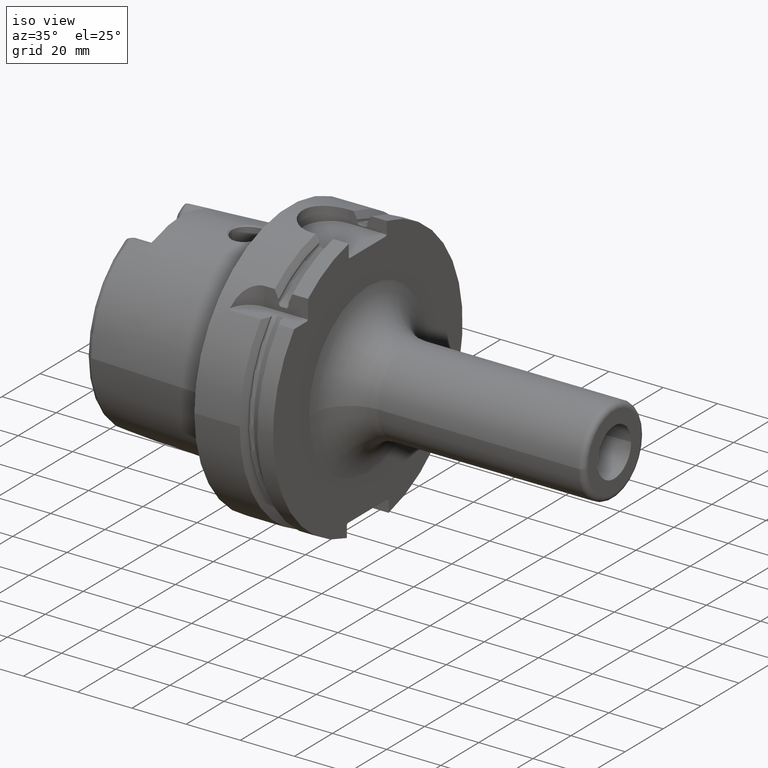
[diagram: clean part render]
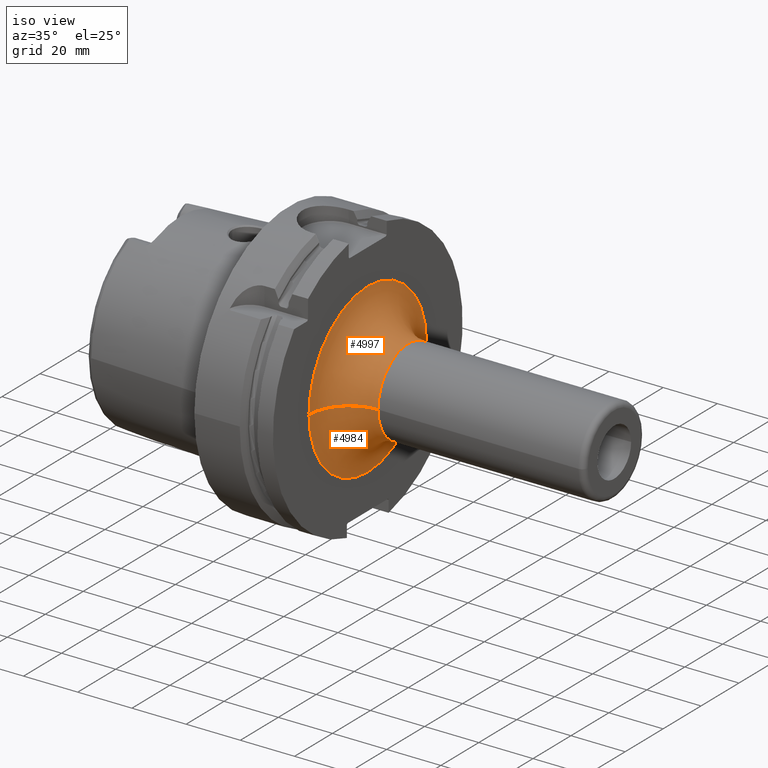
[diagram: same view with one multi-face feature highlighted, each face labeled with its STEP entity id]
A machine part, iso view. The highlighted faces form ONE feature: a constant-radius fillet chain: 2 tangent blend faces with common blend radius 15 mm. The faces share edges in the B-rep.
Their STEP definitions:
[1] entity #4984 (Torus):
#1091=CARTESIAN_POINT('',(2.9E1,0.E0,0.E0));
#1092=DIRECTION('',(1.E0,0.E0,0.E0));
#1093=DIRECTION('',(0.E0,-1.E0,0.E0));
#1094=AXIS2_PLACEMENT_3D('',#1091,#1092,#1093);
#1810=CARTESIAN_POINT('',(4.4E1,-3.1E1,1.844940866746E-12));
#1811=DIRECTION('',(0.E0,-5.951489301381E-14,-1.E0));
#1812=DIRECTION('',(-1.E0,0.E0,0.E0));
#1813=AXIS2_PLACEMENT_3D('',#1810,#1811,#1812);
#1815=CARTESIAN_POINT('',(4.4E1,3.1E1,-1.849187469816E-12));
#1816=DIRECTION('',(0.E0,5.965193616841E-14,1.E0));
#1817=DIRECTION('',(-1.E0,0.E0,0.E0));
#1818=AXIS2_PLACEMENT_3D('',#1815,#1816,#1817);
#1849=CARTESIAN_POINT('',(4.4E1,0.E0,0.E0));
#1850=DIRECTION('',(1.E0,0.E0,0.E0));
#1851=DIRECTION('',(0.E0,-1.E0,0.E0));
#1852=AXIS2_PLACEMENT_3D('',#1849,#1850,#1851);
#3125=CARTESIAN_POINT('',(2.9E1,-3.1E1,0.E0));
#3126=CARTESIAN_POINT('',(2.9E1,3.1E1,0.E0));
#3127=VERTEX_POINT('',#3125);
#3128=VERTEX_POINT('',#3126);
#3129=CARTESIAN_POINT('',(4.4E1,-1.6E1,0.E0));
#3130=CARTESIAN_POINT('',(4.4E1,1.6E1,0.E0));
#3131=VERTEX_POINT('',#3129);
#3132=VERTEX_POINT('',#3130);
#4970=CARTESIAN_POINT('',(4.4E1,0.E0,0.E0));
#4971=DIRECTION('',(1.E0,0.E0,0.E0));
#4972=DIRECTION('',(0.E0,-9.999884548084E-1,4.805231507475E-3));
#4973=AXIS2_PLACEMENT_3D('',#4970,#4971,#4972);
#4974=TOROIDAL_SURFACE('',#4973,3.1E1,1.5E1);
#4975=ORIENTED_EDGE('',*,*,#4250,.F.);
#4977=ORIENTED_EDGE('',*,*,#4976,.T.);
#4979=ORIENTED_EDGE('',*,*,#4978,.T.);
#4981=ORIENTED_EDGE('',*,*,#4980,.F.);
#4982=EDGE_LOOP('',(#4975,#4977,#4979,#4981));
#4983=FACE_OUTER_BOUND('',#4982,.F.);
#4984=ADVANCED_FACE('',(#4983),#4974,.F.);
#1095=CIRCLE('',#1094,3.1E1);
#1814=CIRCLE('',#1813,1.5E1);
#1819=CIRCLE('',#1818,1.5E1);
#1853=CIRCLE('',#1852,1.6E1);
#4250=EDGE_CURVE('',#3127,#3128,#1095,.T.);
#4976=EDGE_CURVE('',#3127,#3131,#1814,.T.);
#4978=EDGE_CURVE('',#3131,#3132,#1853,.T.);
#4980=EDGE_CURVE('',#3128,#3132,#1819,.T.);
[2] entity #4997 (Torus):
#1096=CARTESIAN_POINT('',(2.9E1,0.E0,0.E0));
#1097=DIRECTION('',(1.E0,0.E0,0.E0));
#1098=DIRECTION('',(0.E0,1.E0,0.E0));
#1099=AXIS2_PLACEMENT_3D('',#1096,#1097,#1098);
#1810=CARTESIAN_POINT('',(4.4E1,-3.1E1,1.844940866746E-12));
#1811=DIRECTION('',(0.E0,-5.951489301381E-14,-1.E0));
#1812=DIRECTION('',(-1.E0,0.E0,0.E0));
#1813=AXIS2_PLACEMENT_3D('',#1810,#1811,#1812);
#1815=CARTESIAN_POINT('',(4.4E1,3.1E1,-1.849187469816E-12));
#1816=DIRECTION('',(0.E0,5.965193616841E-14,1.E0));
#1817=DIRECTION('',(-1.E0,0.E0,0.E0));
#1818=AXIS2_PLACEMENT_3D('',#1815,#1816,#1817);
#1825=CARTESIAN_POINT('',(4.4E1,0.E0,0.E0));
#1826=DIRECTION('',(1.E0,0.E0,0.E0));
#1827=DIRECTION('',(0.E0,1.E0,0.E0));
#1828=AXIS2_PLACEMENT_3D('',#1825,#1826,#1827);
#3125=CARTESIAN_POINT('',(2.9E1,-3.1E1,0.E0));
#3126=CARTESIAN_POINT('',(2.9E1,3.1E1,0.E0));
#3127=VERTEX_POINT('',#3125);
#3128=VERTEX_POINT('',#3126);
#3129=CARTESIAN_POINT('',(4.4E1,-1.6E1,0.E0));
#3130=CARTESIAN_POINT('',(4.4E1,1.6E1,0.E0));
#3131=VERTEX_POINT('',#3129);
#3132=VERTEX_POINT('',#3130);
#4985=CARTESIAN_POINT('',(4.4E1,0.E0,0.E0));
#4986=DIRECTION('',(1.E0,0.E0,0.E0));
#4987=DIRECTION('',(0.E0,9.999884548084E-1,-4.805231507475E-3));
#4988=AXIS2_PLACEMENT_3D('',#4985,#4986,#4987);
#4989=TOROIDAL_SURFACE('',#4988,3.1E1,1.5E1);
#4990=ORIENTED_EDGE('',*,*,#4252,.F.);
#4991=ORIENTED_EDGE('',*,*,#4980,.T.);
#4993=ORIENTED_EDGE('',*,*,#4992,.T.);
#4994=ORIENTED_EDGE('',*,*,#4976,.F.);
#4995=EDGE_LOOP('',(#4990,#4991,#4993,#4994));
#4996=FACE_OUTER_BOUND('',#4995,.F.);
#4997=ADVANCED_FACE('',(#4996),#4989,.F.);
#1100=CIRCLE('',#1099,3.1E1);
#1814=CIRCLE('',#1813,1.5E1);
#1819=CIRCLE('',#1818,1.5E1);
#1829=CIRCLE('',#1828,1.6E1);
#4252=EDGE_CURVE('',#3128,#3127,#1100,.T.);
#4976=EDGE_CURVE('',#3127,#3131,#1814,.T.);
#4980=EDGE_CURVE('',#3128,#3132,#1819,.T.);
#4992=EDGE_CURVE('',#3132,#3131,#1829,.T.);